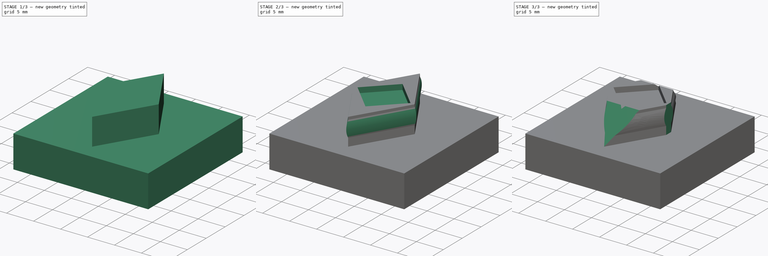
[diagram: build sequence overview — one tinted view per stage of 3, left to right]
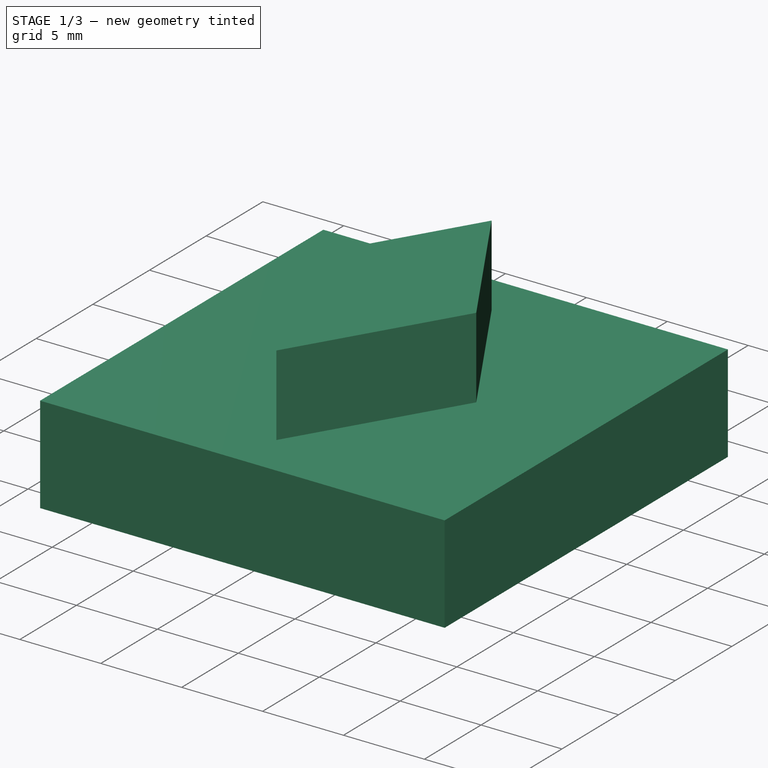
[diagram: stage 1 of 3 — iso view after this stage's code; geometry added in this stage tinted green]
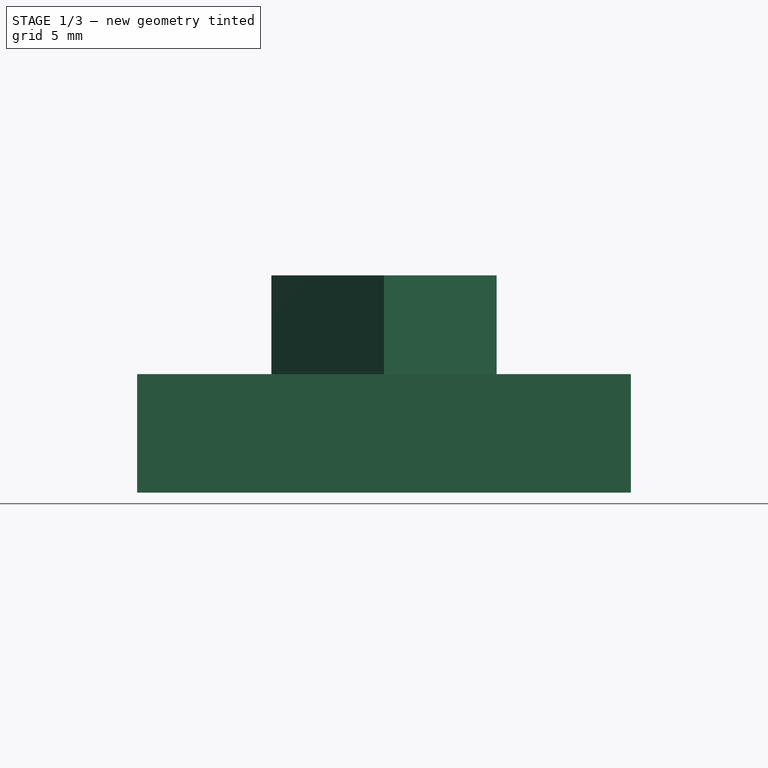
[diagram: stage 1 of 3 — front view after this stage's code; geometry added in this stage tinted green]
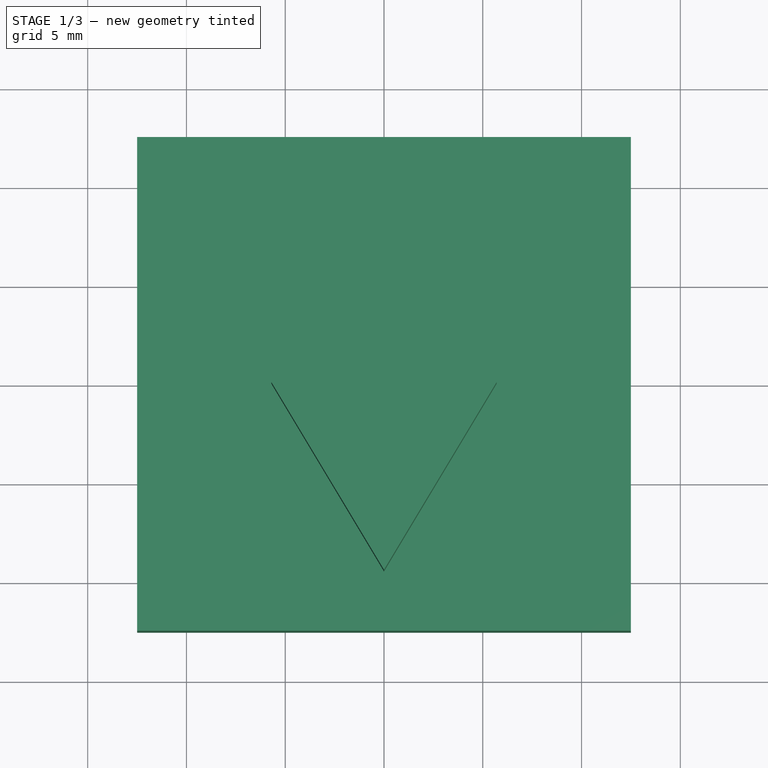
[diagram: stage 1 of 3 — top view after this stage's code; geometry added in this stage tinted green]
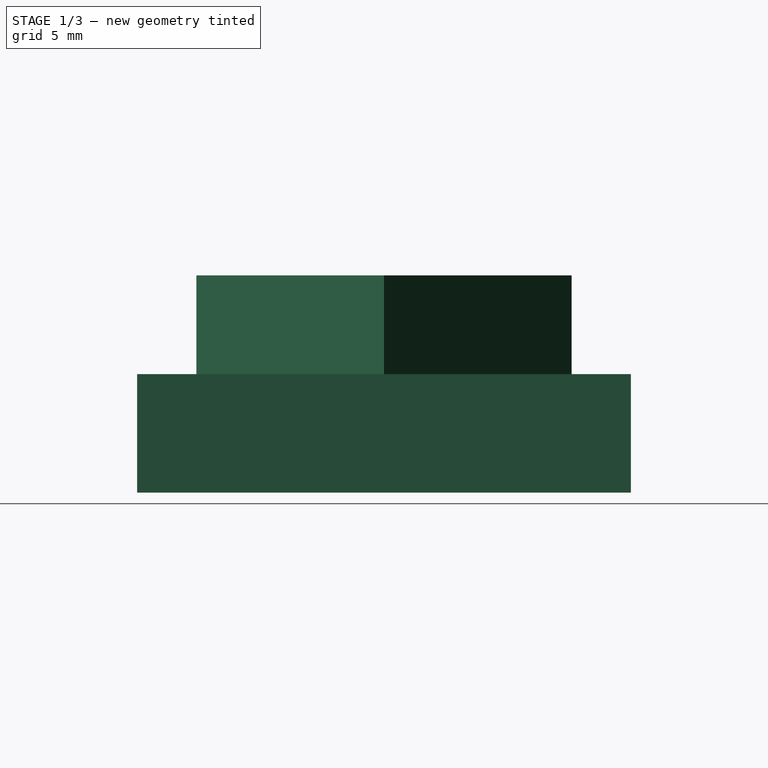
[diagram: stage 1 of 3 — right view after this stage's code; geometry added in this stage tinted green]
FCSTD DOCUMENT  (FreeCAD 1.1R20251031 (Git shallow))
Label: DockLink_male
License: All rights reserved
LicenseURL: https://en.wikipedia.org/wiki/All_rights_reserved
objects: Sketcher::SketchObject×8, PartDesign::Pocket×3, PartDesign::Pad×2, App::Point×1, App::VarSet×1, PartDesign::AdditiveLoft×1, PartDesign::Body×1
note: 35 computed .brp shape members not serialized (recipe doc carries the construction recipe); baked Part::Feature solids carry a one-line shape summary decoded from their .brp
EXTERNAL_REF file=DockLink_female.FCStd obj=VarSet

FEATURE [App::Point] Origin001
  Role = Origin
FEATURE [Sketcher::SketchObject] Sketch  label="Sketch_Base"
  ArcFitTolerance = 1e-06
  AttachmentSupport = -> [Origin]
  ExternalTypes = [0]
  FullyConstrained = true
  MakeInternals = false
  MapMode = 5
  expr: Constraints[10] = <<DockLink_female>>#VarSet.width_printbase
  expr: Constraints[11] = <<DockLink_female>>#VarSet.width_printbase
  expr: Constraints[22] = <<DockLink_female>>#VarSet.border_vert
  expr: Constraints[23] = <<DockLink_female>>#VarSet.border_hori
  sketch-geometry (10):
    g0: LineSegment StartX=-12.5 StartY=12.5 StartZ=0 EndX=-12.5 EndY=-12.5 EndZ=0
    g1: LineSegment StartX=-12.5 StartY=-12.5 StartZ=0 EndX=12.5 EndY=-12.5 EndZ=0
    g2: LineSegment StartX=12.5 StartY=-12.5 StartZ=0 EndX=12.5 EndY=12.5 EndZ=0
    g3: LineSegment StartX=12.5 StartY=12.5 StartZ=0 EndX=-12.5 EndY=12.5 EndZ=0
    g4: GeomPoint [constr] X=0 Y=0 Z=0
    g5: LineSegment [constr] StartX=-8.5 StartY=9.5 StartZ=0 EndX=-8.5 EndY=-9.5 EndZ=0
    g6: LineSegment [constr] StartX=-8.5 StartY=-9.5 StartZ=0 EndX=8.5 EndY=-9.5 EndZ=0
    g7: LineSegment [constr] StartX=8.5 StartY=-9.5 StartZ=0 EndX=8.5 EndY=9.5 EndZ=0
    g8: LineSegment [constr] StartX=8.5 StartY=9.5 StartZ=0 EndX=-8.5 EndY=9.5 EndZ=0
    g9: GeomPoint [constr] X=0 Y=0 Z=0
  constraints (24):
    c: Coincident(g0,g1)
    c: Coincident(g1,g2)
    c: Coincident(g2,g3)
    c: Coincident(g3,g0)
    c: Vertical(g0)
    c: Vertical(g2)
    c: Horizontal(g1)
    c: Horizontal(g3)
    c: Symmetric(g2,g0,g4)
    c: Coincident(g4,g-1)
    c: DistanceX(g3,g3) = 25
    c: DistanceY(g0,g0) = 25
    c: Coincident(g5,g6)
    c: Coincident(g6,g7)
    c: Coincident(g7,g8)
    c: Coincident(g8,g5)
    c: Vertical(g5)
    c: Vertical(g7)
    c: Horizontal(g6)
    c: Horizontal(g8)
    c: Symmetric(g7,g5,g9)
    c: Coincident(g9,g4)
    c: Distance(g3,g8) = 3
    c: Distance(g2,g7) = 4
FEATURE [App::VarSet] VarSet
  diameter_feet = 6.35
  feet_gap = 0.3
  thickness_base = 6
FEATURE [PartDesign::Pad] Pad  label="Pad_Base"
  Direction = (0,0,1)
  Length = 6
  Length2 = 10
  Profile = -> Sketch
  ReferenceAxis = -> Sketch [N_Axis]
  Refine = true
  Reversed = true
  SideType = 0
  Suppressed = false
  Type = 0
  Type2 = 0
  expr: Length = VarSet.thickness_base
FEATURE [Sketcher::SketchObject] Sketch001  label="Sketch_stud"
  ArcFitTolerance = 1e-06
  AttachmentSupport = -> [Pad]
  ExternalGeometry = -> [Pad]
  ExternalTypes = [0,0,0,0]
  FullyConstrained = true
  MakeInternals = false
  MapMode = 5
  expr: Constraints[18] = <<DockLink_female>>#VarSet.width_printbase - 2 * (<<DockLink_female>>#VarSet.border_hori + <<DockLink_female>>#VarSet.thickness_clip + <<DockLink_female>>#VarSet.indent_depth_clip + 0.5 mm)
  expr: Constraints[19] = <<DockLink_female>>#VarSet.border_vert
  sketch-geometry (8):
    g0: LineSegment [constr] StartX=-12.5 StartY=12.5 StartZ=0 EndX=-12.5 EndY=-12.5 EndZ=0
    g1: LineSegment [constr] StartX=-12.5 StartY=-12.5 StartZ=0 EndX=12.5 EndY=-12.5 EndZ=0
    g2: LineSegment [constr] StartX=12.5 StartY=-12.5 StartZ=0 EndX=12.5 EndY=12.5 EndZ=0
    g3: LineSegment [constr] StartX=12.5 StartY=12.5 StartZ=0 EndX=-12.5 EndY=12.5 EndZ=0
    g4: LineSegment StartX=0 StartY=9.5 StartZ=0 EndX=-5.7 EndY=0 EndZ=0
    g5: LineSegment StartX=-5.7 StartY=0 StartZ=0 EndX=0 EndY=-9.5 EndZ=0
    g6: LineSegment StartX=0 StartY=-9.5 StartZ=0 EndX=5.7 EndY=0 EndZ=0
    g7: LineSegment StartX=5.7 StartY=0 StartZ=0 EndX=0 EndY=9.5 EndZ=0
  constraints (20):
    c: Coincident(g0,g1)
    c: Coincident(g1,g2)
    c: Coincident(g2,g3)
    c: Coincident(g3,g0)
    c: Vertical(g0)
    c: Vertical(g2)
    c: Horizontal(g1)
    c: Horizontal(g3)
    c: Coincident(g0,g-3)
    c: Coincident(g1,g-4)
    c: PointOnObject(g4,g-2)
    c: PointOnObject(g4,g-1)
    c: Coincident(g5,g4)
    c: Coincident(g6,g5)
    c: Coincident(g7,g6)
    c: Coincident(g7,g4)
    c: Symmetric(g4,g5,g-1)
    c: Symmetric(g4,g6,g-1)
    c: Distance(g4,g6) = 11.4
    c: Distance(g4,g3) = 3
FEATURE [PartDesign::Pad] Pad001  label="Pad_stud"
  BaseFeature = -> Pad
  Direction = (0,0,1)
  Length = 5
  Length2 = 10
  Profile = -> Sketch001
  ReferenceAxis = -> Sketch001 [N_Axis]
  Refine = true
  SideType = 0
  Suppressed = false
  Type = 0
  Type2 = 0
  expr: Length = <<DockLink_female>>#VarSet.thickness_base - 1 mm
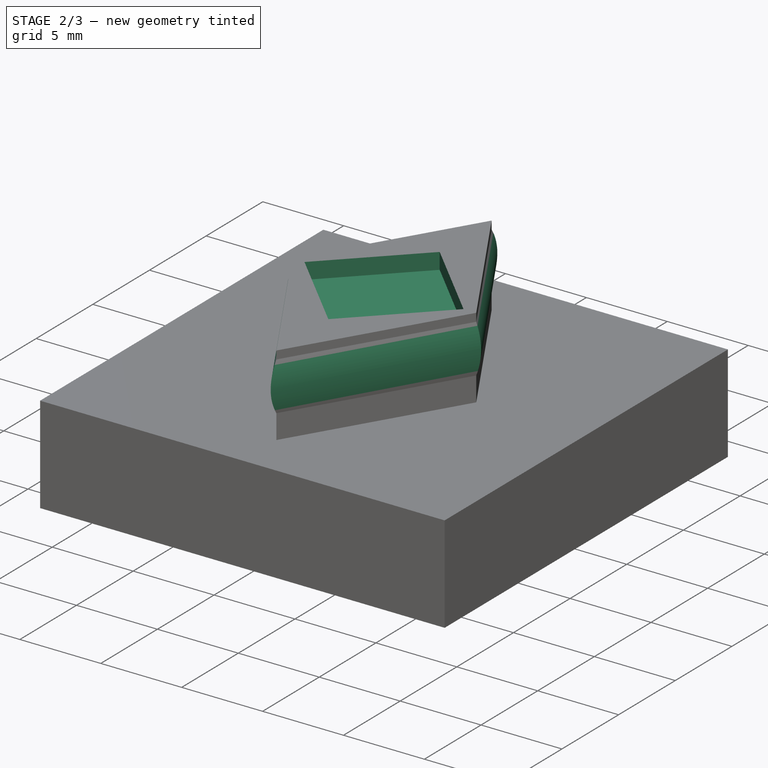
[diagram: stage 2 of 3 — iso view after this stage's code; geometry added in this stage tinted green]
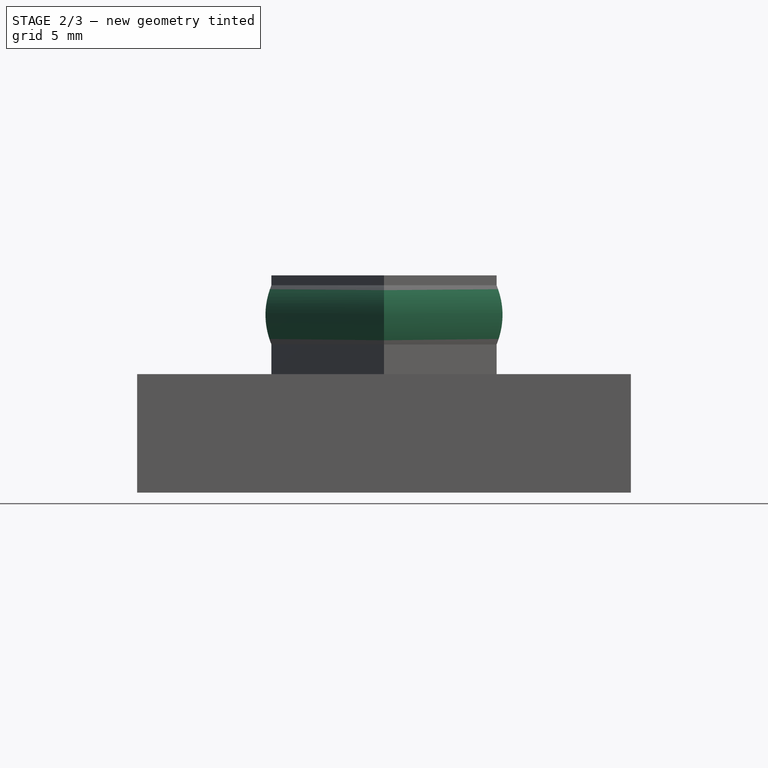
[diagram: stage 2 of 3 — front view after this stage's code; geometry added in this stage tinted green]
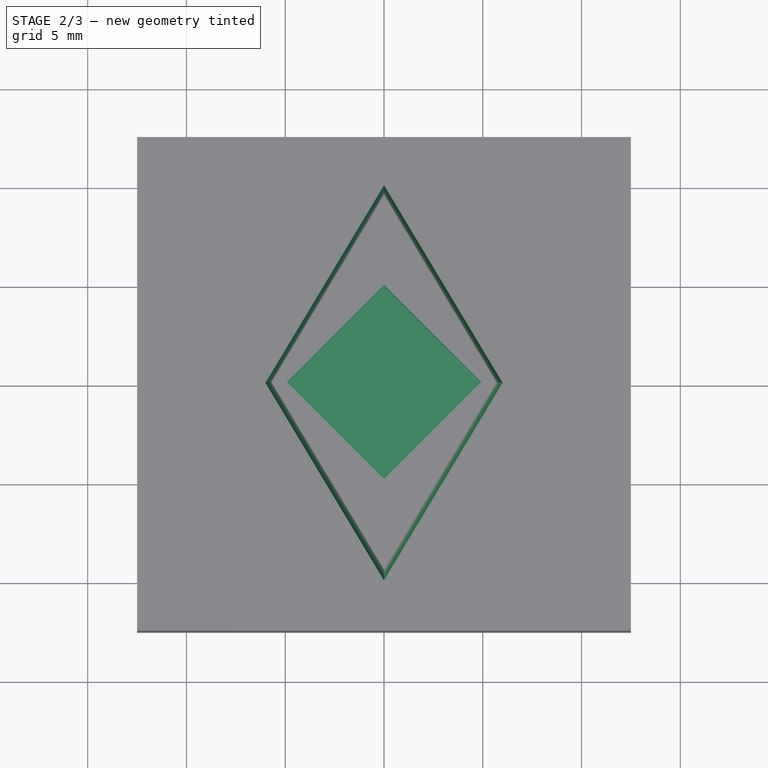
[diagram: stage 2 of 3 — top view after this stage's code; geometry added in this stage tinted green]
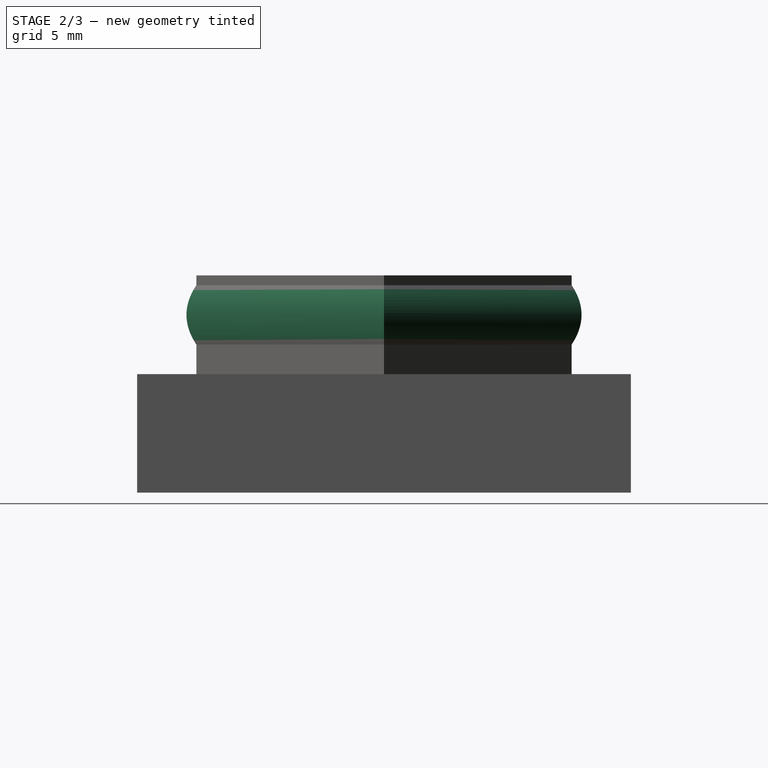
[diagram: stage 2 of 3 — right view after this stage's code; geometry added in this stage tinted green]
FEATURE [Sketcher::SketchObject] Sketch002  label="Sketch_nose_top"
  ArcFitTolerance = 1e-06
  AttachmentOffset = pos=(0,0,-0.5) rot=(0,0,1;0rad)
  AttachmentSupport = -> [Pad001]
  ExternalGeometry = -> [Pad001]
  ExternalTypes = [0,0,0,0]
  FullyConstrained = true
  MakeInternals = false
  MapMode = 5
  Placement = pos=(0,0,4.5) rot=(0,0,1;0rad)
  expr: .AttachmentOffset.Base.z = <<DockLink_female>>#VarSet.indent_distance - <<DockLink_female>>#VarSet.thickness_base + 1 mm + <<DockLink_female>>#VarSet.indent_height / 2
FEATURE [Sketcher::SketchObject] Sketch003  label="Sketch_nose_bottom"
  ArcFitTolerance = 1e-06
  AttachmentOffset = pos=(0,0,-3.5) rot=(0,0,1;0rad)
  AttachmentSupport = -> [Pad001]
  ExternalGeometry = -> [Pad001]
  ExternalTypes = [0,0,0,0]
  FullyConstrained = true
  MakeInternals = false
  MapMode = 5
  Placement = pos=(0,0,1.5) rot=(0,0,1;0rad)
  expr: .AttachmentOffset.Base.z = <<DockLink_female>>#VarSet.indent_distance - <<DockLink_female>>#VarSet.thickness_base + 1 mm - <<DockLink_female>>#VarSet.indent_height / 2
FEATURE [Sketcher::SketchObject] Sketch004  label="Sketch_nose_middle"
  ArcFitTolerance = 1e-06
  AttachmentOffset = pos=(0,0,-2) rot=(0,0,1;0rad)
  AttachmentSupport = -> [Pad001]
  ExternalGeometry = -> [Pad001]
  ExternalTypes = [0,0,0,0]
  FullyConstrained = true
  MakeInternals = false
  MapMode = 5
  Placement = pos=(0,0,3) rot=(0,0,1;0rad)
  expr: .AttachmentOffset.Base.z = <<DockLink_female>>#VarSet.indent_distance - <<DockLink_female>>#VarSet.thickness_base + 1 mm
  expr: Constraints[11] = DockLink_female#VarSet.indent_depth_clip
  sketch-geometry (4):
    g0: LineSegment StartX=0 StartY=10 StartZ=0 EndX=-6 EndY=0 EndZ=0
    g1: LineSegment StartX=-6 StartY=0 StartZ=0 EndX=0 EndY=-10 EndZ=0
    g2: LineSegment StartX=0 StartY=-10 StartZ=0 EndX=6 EndY=0 EndZ=0
    g3: LineSegment StartX=6 StartY=0 StartZ=0 EndX=0 EndY=10 EndZ=0
  constraints (12):
    c: PointOnObject(g0,g-2)
    c: PointOnObject(g0,g-1)
    c: Coincident(g1,g0)
    c: PointOnObject(g1,g-2)
    c: Coincident(g2,g1)
    c: PointOnObject(g2,g-1)
    c: Coincident(g3,g2)
    c: Coincident(g3,g0)
    c: Parallel(g-3,g0)
    c: Parallel(g3,g-4)
    c: Parallel(g2,g-5)
    c: Distance(g0,g-6) = 0.3
FEATURE [PartDesign::AdditiveLoft] AdditiveLoft  label="AdditiveLoft_nose"
  BaseFeature = -> Pad001
  Closed = false
  Profile = -> Sketch002
  Refine = true
  Ruled = false
  Sections = -> [Sketch004,Sketch003]
  Suppressed = false
FEATURE [Sketcher::SketchObject] Sketch005  label="Sketch_feet_recess"
  ArcFitTolerance = 1e-06
  AttachmentSupport = -> [AdditiveLoft]
  ExternalTypes = [0]
  FullyConstrained = true
  MakeInternals = false
  MapMode = 5
  Placement = pos=(0,0,5) rot=(0,0,1;0rad)
  expr: Constraints[13] = VarSet.diameter_feet + 2 * VarSet.feet_gap
  sketch-geometry (5):
    g0: LineSegment StartX=0 StartY=-4.91439 StartZ=0 EndX=4.91439 EndY=9e-16 EndZ=0
    g1: LineSegment StartX=4.91439 StartY=9e-16 StartZ=0 EndX=9e-16 EndY=4.91439 EndZ=0
    g2: LineSegment StartX=9e-16 StartY=4.91439 StartZ=0 EndX=-4.91439 EndY=9e-16 EndZ=0
    g3: LineSegment StartX=-4.91439 StartY=9e-16 StartZ=0 EndX=0 EndY=-4.91439 EndZ=0
    g4: Circle [constr] CenterX=0 CenterY=0 CenterZ=0 NormalX=0 NormalY=0 NormalZ=1 AngleXU=0 Radius=4.91439
  constraints (14):
    c: Coincident(g0,g1)
    c: Coincident(g1,g2)
    c: Coincident(g2,g3)
    c: Coincident(g3,g0)
    c: Equal(g0,g1)
    c: Equal(g0,g2)
    c: Equal(g0,g3)
    c: PointOnObject(g0,g4)
    c: PointOnObject(g1,g4)
    c: PointOnObject(g2,g4)
    c: PointOnObject(g3,g4)
    c: Coincident(g4,g-1)
    c: PointOnObject(g3,g-2)
    c: Distance(g0,g2) = 6.95
FEATURE [PartDesign::Pocket] Pocket  label="Pocket_feet_recess"
  BaseFeature = -> AdditiveLoft
  Direction = (0,0,-1)
  Length = 1
  Length2 = 5
  Profile = -> Sketch005
  ReferenceAxis = -> Sketch005 [N_Axis]
  Refine = true
  SideType = 0
  Suppressed = false
  Type = 0
  Type2 = 0
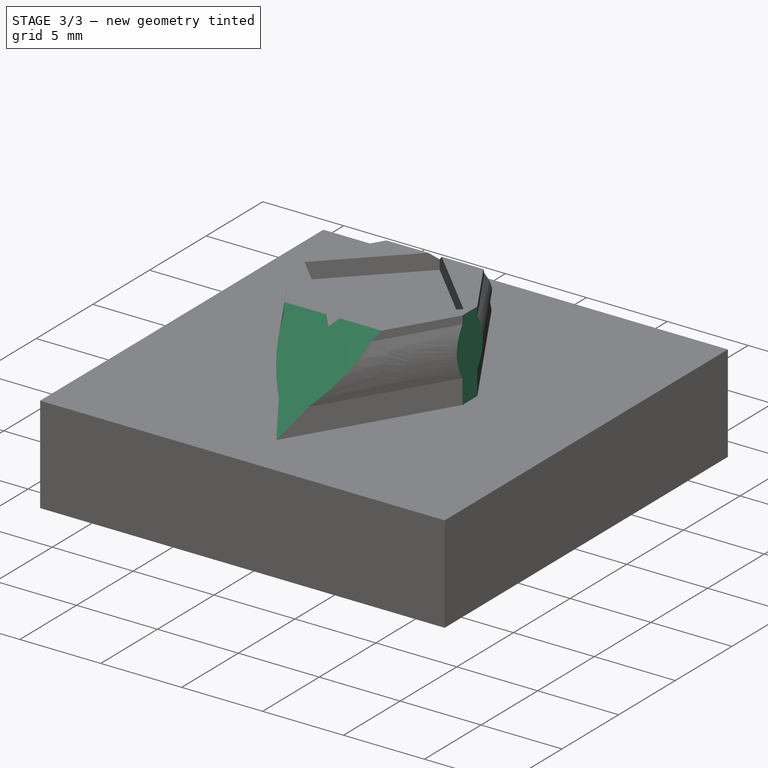
[diagram: stage 3 of 3 — iso view after this stage's code; geometry added in this stage tinted green]
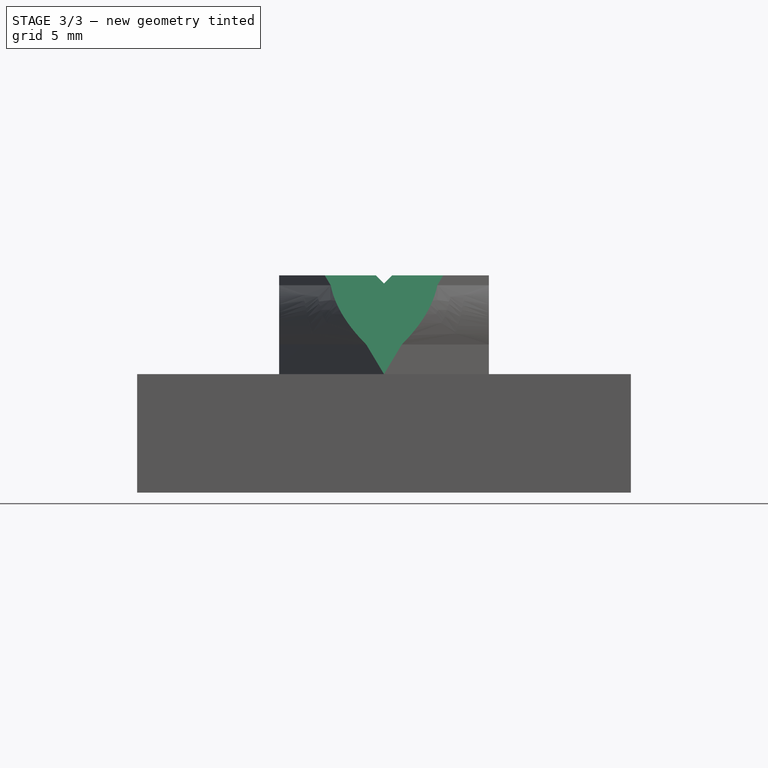
[diagram: stage 3 of 3 — front view after this stage's code; geometry added in this stage tinted green]
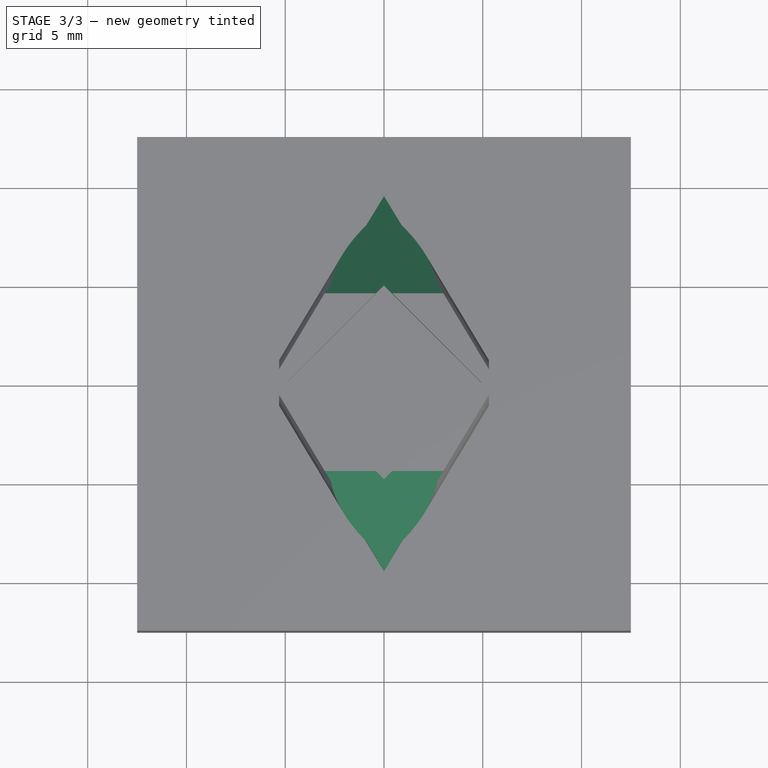
[diagram: stage 3 of 3 — top view after this stage's code; geometry added in this stage tinted green]
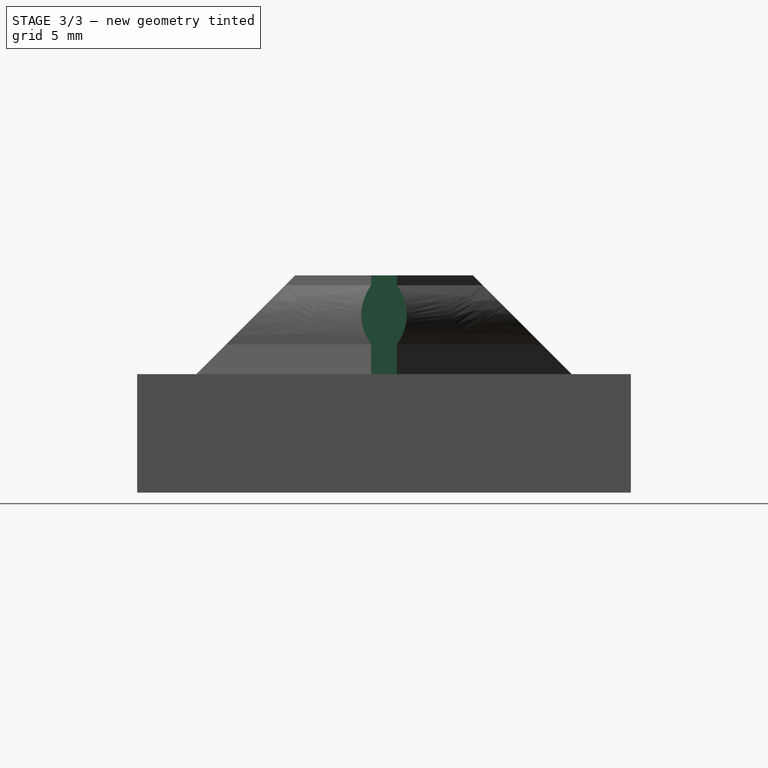
[diagram: stage 3 of 3 — right view after this stage's code; geometry added in this stage tinted green]
FEATURE [Sketcher::SketchObject] Sketch006  label="Sketch_feet_slant"
  ArcFitTolerance = 1e-06
  AttachmentSupport = -> [Origin]
  ExternalGeometry = -> [Pocket]
  ExternalTypes = [0,0,0,0,0,0]
  FullyConstrained = true
  MakeInternals = false
  MapMode = 5
  Placement = pos=(0,0,0) rot=(0.57735,0.57735,0.57735;2.0944rad)
  expr: Constraints[20] = <<DockLink_female>>#VarSet.indent_depth_clip + 1 mm
  sketch-geometry (10):
    g0: LineSegment [constr] StartX=-9.5 StartY=1.5 StartZ=0 EndX=-9.5 EndY=5 EndZ=0
    g1: LineSegment [constr] StartX=9.5 StartY=1.5 StartZ=0 EndX=9.5 EndY=5 EndZ=0
    g2: LineSegment StartX=-10.8 StartY=0 StartZ=0 EndX=-10.8 EndY=5 EndZ=0
    g3: LineSegment StartX=-10.8 StartY=5 StartZ=0 EndX=-4.5 EndY=5 EndZ=0
    g4: LineSegment StartX=-4.5 StartY=5 StartZ=0 EndX=-9.5 EndY=0 EndZ=0
    g5: LineSegment StartX=-9.5 StartY=0 StartZ=0 EndX=-10.8 EndY=0 EndZ=0
    g6: LineSegment StartX=10.8 StartY=0 StartZ=0 EndX=10.8 EndY=5 EndZ=0
    g7: LineSegment StartX=10.8 StartY=5 StartZ=0 EndX=4.5 EndY=5 EndZ=0
    g8: LineSegment StartX=4.5 StartY=5 StartZ=0 EndX=9.5 EndY=0 EndZ=0
    g9: LineSegment StartX=9.5 StartY=0 StartZ=0 EndX=10.8 EndY=0 EndZ=0
  constraints (25):
    c: Coincident(g0,g-3)
    c: Coincident(g0,g-7)
    c: Coincident(g1,g-4)
    c: Coincident(g1,g-8)
    c: PointOnObject(g2,g-1)
    c: Vertical(g2)
    c: Coincident(g3,g2)
    c: Horizontal(g3)
    c: Coincident(g4,g3)
    c: Coincident(g4,g-3)
    c: Coincident(g5,g4)
    c: Coincident(g5,g2)
    c: PointOnObject(g6,g-1)
    c: Vertical(g6)
    c: Coincident(g7,g6)
    c: Horizontal(g7)
    c: Coincident(g8,g7)
    c: Coincident(g8,g-4)
    c: Coincident(g9,g8)
    c: Coincident(g9,g6)
    c: Distance(g0,g2) = 1.3
    c: Angle(g4,g0) = 0.785398
    c: PointOnObject(g0,g3)
    c: Equal(g3,g7)
    c: Symmetric(g3,g7,g-2)
FEATURE [PartDesign::Pocket] Pocket001
  BaseFeature = -> Pocket
  Direction = (-1,0,0)
  Length = 5
  Length2 = 5
  Profile = -> Sketch006
  ReferenceAxis = -> Sketch006 [N_Axis]
  Refine = true
  SideType = 2
  Suppressed = false
  Type = 1
  Type2 = 0
FEATURE [Sketcher::SketchObject] Sketch007
  ArcFitTolerance = 1e-06
  AttachmentSupport = -> [Pocket001]
  ExternalGeometry = -> [Pocket001]
  ExternalTypes = [0,0,0,0,0,0]
  FullyConstrained = true
  MakeInternals = false
  MapMode = 5
  sketch-geometry (6):
    g0: LineSegment StartX=-5.3072 StartY=11.5 StartZ=0 EndX=-5.3072 EndY=-11.5 EndZ=0
    g1: LineSegment StartX=-5.3072 StartY=-11.5 StartZ=0 EndX=5.3072 EndY=-11.5 EndZ=0
    g2: LineSegment StartX=5.3072 StartY=-11.5 StartZ=0 EndX=5.3072 EndY=11.5 EndZ=0
    g3: LineSegment StartX=5.3072 StartY=11.5 StartZ=0 EndX=-5.3072 EndY=11.5 EndZ=0
    g4: GeomPoint [constr] X=0 Y=0 Z=0
    g5: GeomPoint [constr] X=5.3072 Y=4e-16 Z=0
  constraints (13):
    c: Coincident(g0,g1)
    c: Coincident(g1,g2)
    c: Coincident(g2,g3)
    c: Coincident(g3,g0)
    c: Vertical(g0)
    c: Vertical(g2)
    c: Horizontal(g1)
    c: Horizontal(g3)
    c: Symmetric(g2,g0,g4)
    c: Coincident(g4,g-1)
    c: Distance(g-4,g3) = 1
    c: Symmetric(g-7,g-8,g5)
    c: PointOnObject(g5,g2)
FEATURE [PartDesign::Pocket] Pocket002
  BaseFeature = -> Pocket001
  Direction = (0,0,-1)
  Length = 5
  Length2 = 5
  Profile = -> Sketch007
  ReferenceAxis = -> Sketch007 [N_Axis]
  Refine = true
  Reversed = true
  SideType = 0
  Suppressed = false
  Type = 1
  Type2 = 0
FEATURE [PartDesign::Body] Body  label="Body_DockLink_male"
  AllowCompound = true
  Group = -> [Sketch,Pad,Sketch001,Pad001,Sketch004,Sketch002,Sketch003,AdditiveLoft,Sketch005,Pocket,Sketch006,Pocket001,Sketch007,Pocket002]
  Origin = -> Origin
  Tip = -> Pocket002
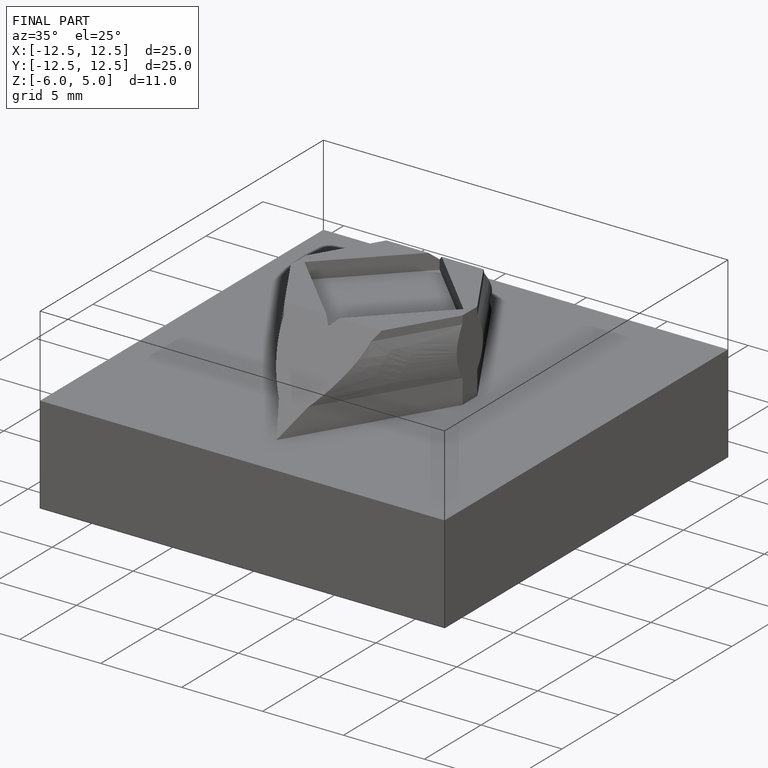
[diagram: finished part — iso view with bounding-box wireframe]
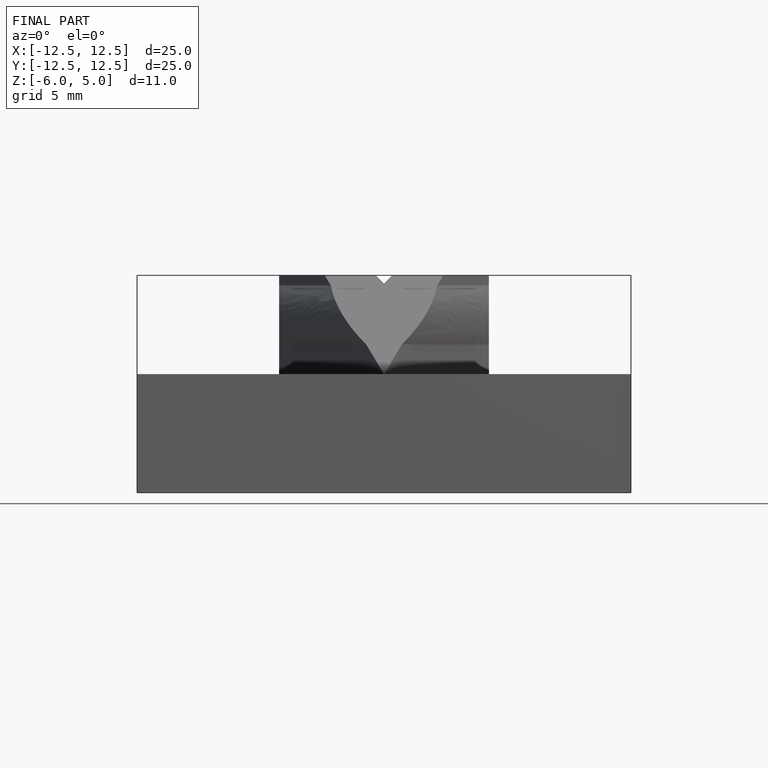
[diagram: finished part — front view with bounding-box wireframe]
